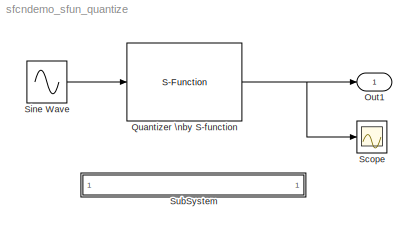
MODEL sfcndemo_sfun_quantize
KIND model
BLOCK [Outport] Out1
  IconDisplay = Port number
  InitialOutput = 0
BLOCK [S-Function] Quantizer \nby S-function
  FunctionName = quantize
  MaskDescription = This is a vectorized quantizer block. It quantizes the input into steps as specified by the quantization interval parameter, q.
  MaskDisplay = plot([-.3 NaN 0 .4 0.8 1.2 1.6 2 2.4 2.8 3.2 3.6 4 4.4 4.8 5.2 5.6 6 6.4 6.8 7.2 7.6 8 8.4 8.8 9.2 9.6 10 NaN 10.3 NaN -.3 10.3 NaN 4 4],[-2.5 NaN 0 0 1 1 2 2 1 1 0 0 -1 -1 -2 -2 -1 -1 0 0 1 1 2 2 1 1 0 0 NaN 2.5 NaN 0 0 NaN -2.5 2.5]);
  MaskEnableString = on
  MaskIconFrame = on
  MaskIconOpaque = on
  MaskIconRotate = none
  MaskIconUnits = autoscale
  MaskPromptString = Quantization interval:
  MaskStyleString = edit
  MaskToolTipString = on
  MaskTunableValueString = on
  MaskType = S-function: sfun_quantize
  MaskValueString = 2
  MaskVariables = q=@1;
  MaskVisibilityString = on
  Parameters = q
  Ports = [1, 1]
BLOCK [Scope] Scope
  DataFormat = StructureWithTime
  NumInputPorts = 1
  Ports = [1]
  TimeRange = 10
  YMax = 2
  YMin = -2
BLOCK [Sin] Sine Wave
  Amplitude = [1 2]
  Ports = [0, 1]
  SampleTime = 0
BLOCK [SubSystem] SubSystem
  MaskDisplay = disp('matlabroot<path>');
  MaskIconFrame = on
  MaskIconOpaque = on
  MaskIconRotate = none
  MaskIconUnits = autoscale
  MinAlgLoopOccurrences = off
  OpenFcn = edit(fullfile(matlabroot,'simulink','src','quantize.c'))
  Ports = []
  PropExecContextAcrossSSBoundary = on
  RTWSystemCode = Auto
  TreatAsAtomicUnit = off
NET Quantizer \nby S-function:1 -> Out1:1, Scope:1
LINE Sine Wave:1 -> Quantizer \nby S-function:1
note: NET lines group one-source signal fan-out (src -> all destinations, sorted); 1:1 wires keep LINE
note: 1 file-system path scrubbed to <path> (not preserved elsewhere — flat text is the only slx artifact)
